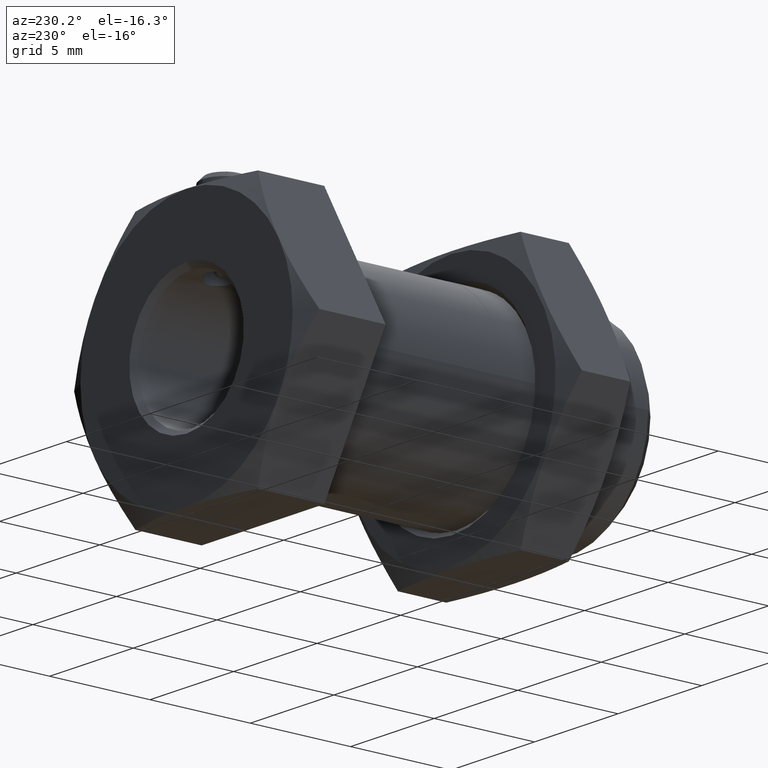
[diagram: clean part render]
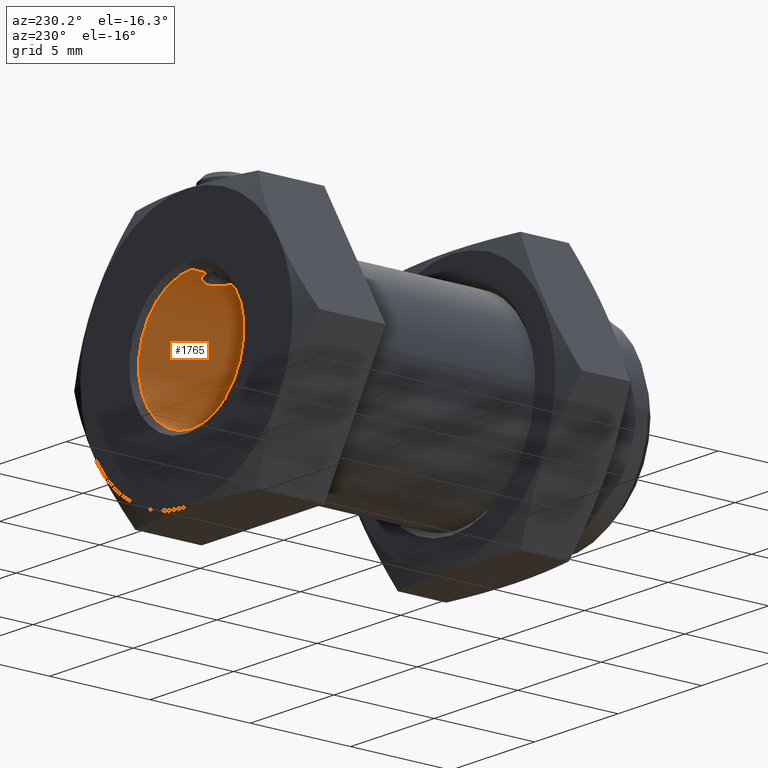
[diagram: same view with one face highlighted and labeled with its STEP entity id]
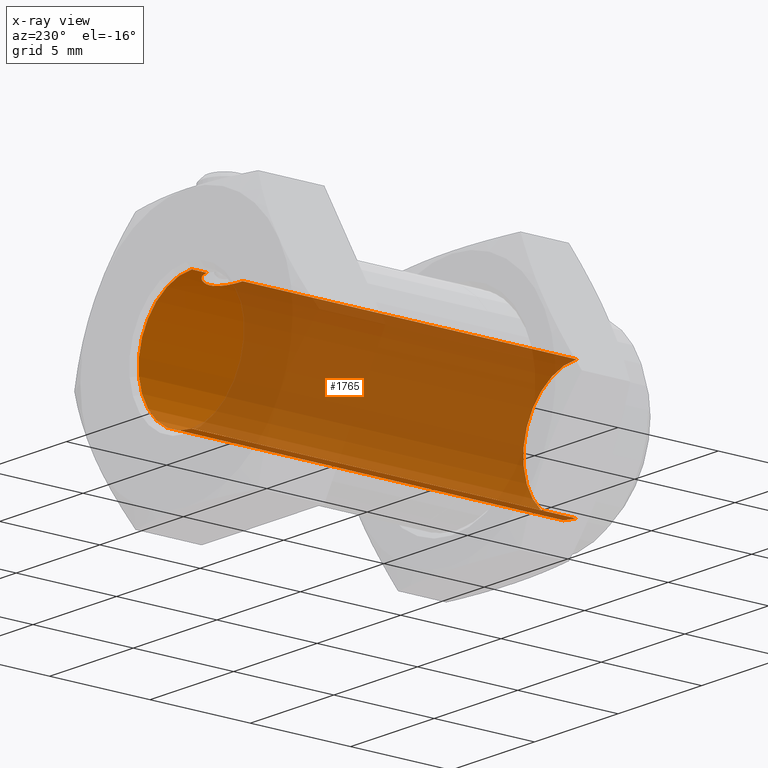
[diagram: x-ray of the same camera — body ghosted, the highlighted face saturated]
A machine part, auxiliary view. The second image highlights one B-rep face of the part: STEP entity #1765.
The next image is the same camera in x-ray: the body ghosted, the highlighted face saturated — about 80% of this face is hidden behind the body in this view.
In plain terms, the highlighted cylindrical surface (partial cylindrical patch) has radius 3.175 mm, axis along (0, 1, 0).
Its self-contained STEP definition (entity closure, byte-faithful):
#114 = VECTOR ( 'NONE', #124, 1000.000000000000000 ) ;
#118 = CARTESIAN_POINT ( 'NONE',  ( 0.0000000000000000000, -9.842500000000001100, 3.174999999999999800 ) ) ;
#121 = LINE ( 'NONE', #118, #114 ) ;
#124 = DIRECTION ( 'NONE',  ( 0.0000000000000000000, 1.000000000000000000, 0.0000000000000000000 ) ) ;
#434 = CARTESIAN_POINT ( 'NONE',  ( 3.888253587292846100E-016, -9.588500000000003400, -3.174999999999999800 ) ) ;
#1112 = CARTESIAN_POINT ( 'NONE',  ( -3.222096056487981000E-021, 8.826499999999999300, 3.174999999999999800 ) ) ;
#1113 = DIRECTION ( 'NONE',  ( 0.0000000000000000000, 1.000000000000000000, 0.0000000000000000000 ) ) ;
#1114 = VECTOR ( 'NONE', #1113, 1000.000000000000000 ) ;
#1115 = CARTESIAN_POINT ( 'NONE',  ( 0.0000000000000000000, -9.842500000000001100, 3.174999999999999800 ) ) ;
#1116 = LINE ( 'NONE', #1115, #1114 ) ;
#1118 = DIRECTION ( 'NONE',  ( 0.0000000000000000000, 1.000000000000000000, 0.0000000000000000000 ) ) ;
#1119 = VECTOR ( 'NONE', #1118, 1000.000000000000000 ) ;
#1120 = CARTESIAN_POINT ( 'NONE',  ( 3.888253587292846100E-016, -9.842500000000001100, -3.174999999999999800 ) ) ;
#1121 = LINE ( 'NONE', #1120, #1119 ) ;
#1259 = CARTESIAN_POINT ( 'NONE',  ( 0.0000000000000000000, -9.588500000000003400, 3.174999999999999800 ) ) ;
#1272 = CARTESIAN_POINT ( 'NONE',  ( -1.625607681066840100E-016, 7.048500000000000700, 3.174999999999999800 ) ) ;
#1280 = B_SPLINE_CURVE_WITH_KNOTS ( 'NONE', 3,
 ( #1272, #1362, #1361, #1284, #1283, #1304, #1303, #1302, #1372, #1371 ),
 .UNSPECIFIED., .F., .F.,
 ( 4, 2, 2, 2, 4 ),
 ( 1.578628594542536500E-019, 0.0003492790964462375300, 0.0006985581928924748400, 0.001047837289338712300, 0.001397116385784949700 ),
 .UNSPECIFIED. ) ;
#1283 = CARTESIAN_POINT ( 'NONE',  ( 0.5474285416032599300, 7.227600918636337500, 3.128556848263295700 ) ) ;
#1284 = CARTESIAN_POINT ( 'NONE',  ( 0.4491643571567711100, 7.161518971260798900, 3.144929542501173600 ) ) ;
#1302 = CARTESIAN_POINT ( 'NONE',  ( 0.8654001921724798800, 7.703402876398593300, 3.055130101441325200 ) ) ;
#1303 = CARTESIAN_POINT ( 'NONE',  ( 0.7766042239044873600, 7.489610688557623200, 3.078899691246655300 ) ) ;
#1304 = CARTESIAN_POINT ( 'NONE',  ( 0.7105156778517288700, 7.390871986255972600, 3.095595812198992800 ) ) ;
#1361 = CARTESIAN_POINT ( 'NONE',  ( 0.2340369767356482200, 7.071981733165819700, 3.168210400298114800 ) ) ;
#1362 = CARTESIAN_POINT ( 'NONE',  ( 0.1181460561392736200, 7.048499999999998900, 3.174999999999999400 ) ) ;
#1371 = CARTESIAN_POINT ( 'NONE',  ( 0.8890000000035591700, 7.937499999997533500, 3.047999999999060800 ) ) ;
#1372 = CARTESIAN_POINT ( 'NONE',  ( 0.8889999999997103600, 7.820835028992339800, 3.048000000000084400 ) ) ;
#1519 = CARTESIAN_POINT ( 'NONE',  ( -1.625607681066840100E-016, 7.048500000000000700, 3.174999999999999800 ) ) ;
#1528 = CARTESIAN_POINT ( 'NONE',  ( 0.8890000000035591700, 7.937499999997533500, 3.047999999999060800 ) ) ;
#1705 = CARTESIAN_POINT ( 'NONE',  ( 0.0000000000000000000, 9.588499999999996200, 3.174999999999999800 ) ) ;
#1706 = CARTESIAN_POINT ( 'NONE',  ( 3.888253587292846100E-016, 9.588499999999996200, -3.174999999999999800 ) ) ;
#1745 = EDGE_CURVE ( 'NONE', #2140, #2139, #2967, .T. ) ;
#1751 = EDGE_CURVE ( 'NONE', #1966, #2045, #2386, .T. ) ;
#1754 = ORIENTED_EDGE ( 'NONE', *, *, #1751, .T. ) ;
#1756 = ORIENTED_EDGE ( 'NONE', *, *, #1745, .T. ) ;
#1759 = ORIENTED_EDGE ( 'NONE', *, *, #2035, .F. ) ;
#1761 = EDGE_LOOP ( 'NONE', ( #1759, #1754, #1952, #1953, #1762, #1764, #1756 ) ) ;
#1762 = ORIENTED_EDGE ( 'NONE', *, *, #1763, .T. ) ;
#1763 = EDGE_CURVE ( 'NONE', #2065, #2039, #2322, .T. ) ;
#1764 = ORIENTED_EDGE ( 'NONE', *, *, #2173, .T. ) ;
#1765 = ADVANCED_FACE ( 'NONE', ( #2246 ), #2247, .F. ) ;
#1952 = ORIENTED_EDGE ( 'NONE', *, *, #2037, .T. ) ;
#1953 = ORIENTED_EDGE ( 'NONE', *, *, #2049, .T. ) ;
#1966 = VERTEX_POINT ( 'NONE', #434 ) ;
#2035 = EDGE_CURVE ( 'NONE', #1966, #2139, #1121, .T. ) ;
#2037 = EDGE_CURVE ( 'NONE', #2045, #2067, #1116, .T. ) ;
#2039 = VERTEX_POINT ( 'NONE', #1112 ) ;
#2045 = VERTEX_POINT ( 'NONE', #1259 ) ;
#2049 = EDGE_CURVE ( 'NONE', #2067, #2065, #1280, .T. ) ;
#2065 = VERTEX_POINT ( 'NONE', #1528 ) ;
#2067 = VERTEX_POINT ( 'NONE', #1519 ) ;
#2139 = VERTEX_POINT ( 'NONE', #1706 ) ;
#2140 = VERTEX_POINT ( 'NONE', #1705 ) ;
#2173 = EDGE_CURVE ( 'NONE', #2039, #2140, #121, .T. ) ;
#2246 = FACE_OUTER_BOUND ( 'NONE', #1761, .T. ) ;
#2247 = CYLINDRICAL_SURFACE ( 'NONE', #2279, 3.174999999999999800 ) ;
#2272 = CARTESIAN_POINT ( 'NONE',  ( -3.222096056487981000E-021, 8.826499999999999300, 3.174999999999999800 ) ) ;
#2273 = CARTESIAN_POINT ( 'NONE',  ( 0.1163748258671944300, 8.826499999999999300, 3.175000000000000300 ) ) ;
#2274 = CARTESIAN_POINT ( 'NONE',  ( 0.2336772230019734100, 8.803058083141241500, 3.168224675052651000 ) ) ;
#2278 = CARTESIAN_POINT ( 'NONE',  ( 0.0000000000000000000, -9.842500000000001100, 0.0000000000000000000 ) ) ;
#2279 = AXIS2_PLACEMENT_3D ( 'NONE', #2278, #2391, #2390 ) ;
#2290 = CARTESIAN_POINT ( 'NONE',  ( 0.8890000000002876700, 8.054099599711374700, 3.047999999999914800 ) ) ;
#2291 = CARTESIAN_POINT ( 'NONE',  ( 0.8890000000035591700, 7.937499999997533500, 3.047999999999060800 ) ) ;
#2322 = B_SPLINE_CURVE_WITH_KNOTS ( 'NONE', 3,
 ( #2291, #2290, #2382, #2381, #2380, #2379, #2378, #2274, #2273, #2272 ),
 .UNSPECIFIED., .F., .F.,
 ( 4, 2, 2, 2, 4 ),
 ( 0.001397116385784949700, 0.001746199769451548600, 0.002095283153118147800, 0.002444366536784746800, 0.002793449920451345700 ),
 .UNSPECIFIED. ) ;
#2378 = CARTESIAN_POINT ( 'NONE',  ( 0.4480936435187308200, 8.714035850092678000, 3.145069907458416700 ) ) ;
#2379 = CARTESIAN_POINT ( 'NONE',  ( 0.5461038526522018500, 8.648548448748567100, 3.128805992671724700 ) ) ;
#2380 = CARTESIAN_POINT ( 'NONE',  ( 0.7104937334899781300, 8.484325355137079000, 3.095618680059213800 ) ) ;
#2381 = CARTESIAN_POINT ( 'NONE',  ( 0.7759966739089465500, 8.386745174941300000, 3.079060448271142600 ) ) ;
#2382 = CARTESIAN_POINT ( 'NONE',  ( 0.8657687464011245600, 8.170816400796889300, 3.055033315658026700 ) ) ;
#2383 = DIRECTION ( 'NONE',  ( 0.0000000000000000000, -1.000000000000000000, 0.0000000000000000000 ) ) ;
#2384 = CARTESIAN_POINT ( 'NONE',  ( 0.0000000000000000000, -9.588500000000003400, 0.0000000000000000000 ) ) ;
#2385 = AXIS2_PLACEMENT_3D ( 'NONE', #2384, #2383, #2387 ) ;
#2386 = CIRCLE ( 'NONE', #2385, 3.174999999999999800 ) ;
#2387 = DIRECTION ( 'NONE',  ( 0.0000000000000000000, 0.0000000000000000000, 1.000000000000000000 ) ) ;
#2390 = DIRECTION ( 'NONE',  ( 0.0000000000000000000, 0.0000000000000000000, 1.000000000000000000 ) ) ;
#2391 = DIRECTION ( 'NONE',  ( 0.0000000000000000000, 1.000000000000000000, 0.0000000000000000000 ) ) ;
#2963 = DIRECTION ( 'NONE',  ( 0.0000000000000000000, 0.0000000000000000000, 1.000000000000000000 ) ) ;
#2964 = DIRECTION ( 'NONE',  ( 0.0000000000000000000, 1.000000000000000000, 0.0000000000000000000 ) ) ;
#2965 = CARTESIAN_POINT ( 'NONE',  ( 0.0000000000000000000, 9.588499999999996200, 0.0000000000000000000 ) ) ;
#2966 = AXIS2_PLACEMENT_3D ( 'NONE', #2965, #2964, #2963 ) ;
#2967 = CIRCLE ( 'NONE', #2966, 3.174999999999999800 ) ;